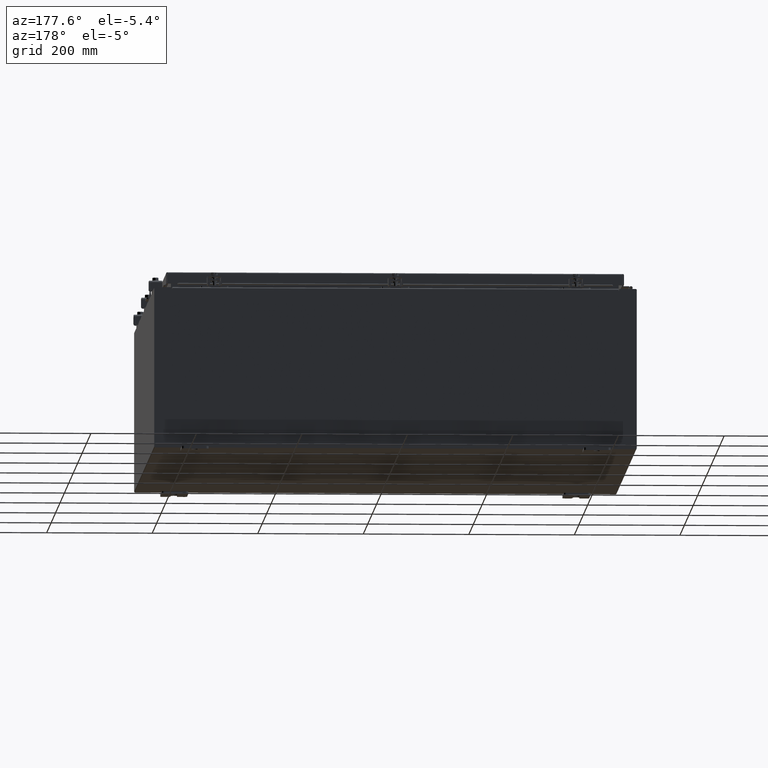
[diagram: clean part render]
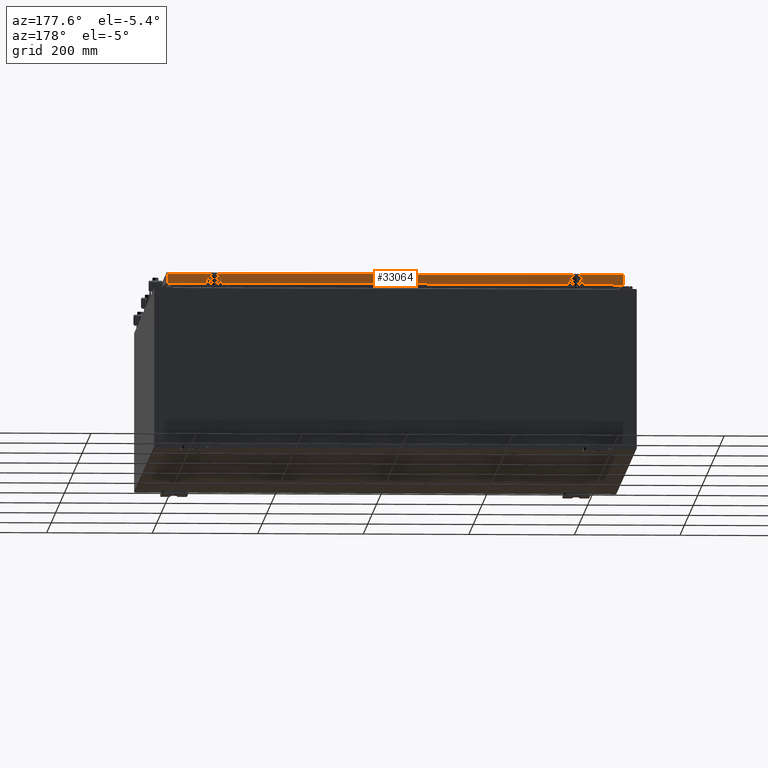
[diagram: same view with one face highlighted and labeled with its STEP entity id]
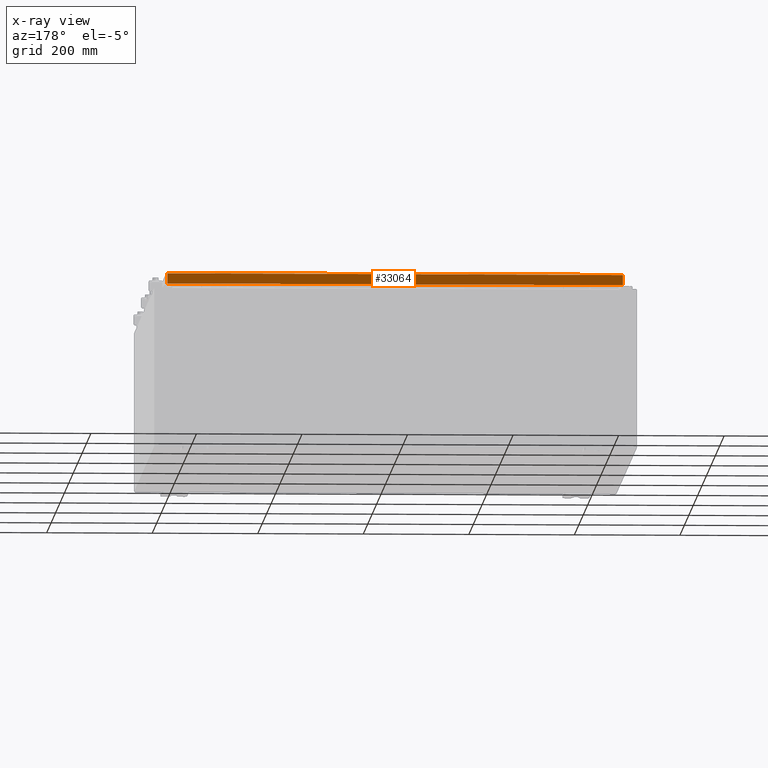
[diagram: x-ray of the same camera — body ghosted, the highlighted face saturated]
A machine part, auxiliary view. The second image highlights one B-rep face of the part: STEP entity #33064.
The next image is the same camera in x-ray: the body ghosted, the highlighted face saturated — about 0% of this face is hidden behind the body in this view.
In plain terms, the highlighted planar face has unit normal (0, -1, -0).
Its self-contained STEP definition (entity closure, byte-faithful):
#399 = CARTESIAN_POINT ( 'NONE',  ( -16.23915786437625600, 17.09399999999999800, -0.8500000000000068600 ) ) ;
#1565 = LINE ( 'NONE', #39183, #8645 ) ;
#2256 = VERTEX_POINT ( 'NONE', #18196 ) ;
#2471 = CARTESIAN_POINT ( 'NONE',  ( -17.07799999999999600, 17.09400000000000800, -0.8500000000000038600 ) ) ;
#2748 = DIRECTION ( 'NONE',  ( 1.000000000000000000, -0.0000000000000000000, -0.0000000000000000000 ) ) ;
#3636 = LINE ( 'NONE', #28234, #30293 ) ;
#6170 = EDGE_CURVE ( 'NONE', #43819, #7211, #1565, .T. ) ;
#7052 = EDGE_CURVE ( 'NONE', #43819, #18267, #3636, .T. ) ;
#7211 = VERTEX_POINT ( 'NONE', #25249 ) ;
#8023 = EDGE_CURVE ( 'NONE', #43436, #2256, #36178, .T. ) ;
#8645 = VECTOR ( 'NONE', #31936, 39.37007874015748100 ) ;
#9272 = EDGE_CURVE ( 'NONE', #16974, #43436, #32267, .T. ) ;
#11768 = CARTESIAN_POINT ( 'NONE',  ( -5.973675908357160900E-030, 17.09400000000000500, 4.844676449176205500E-014 ) ) ;
#15231 = DIRECTION ( 'NONE',  ( 0.0000000000000000000, 2.818880942772344800E-015, -1.000000000000000000 ) ) ;
#16491 = DIRECTION ( 'NONE',  ( 1.000000000000000000, 4.379057701015054300E-047, 1.239713195391617600E-016 ) ) ;
#16974 = VERTEX_POINT ( 'NONE', #38622 ) ;
#17953 = DIRECTION ( 'NONE',  ( -1.000000000000000000, -1.690937371448148100E-031, -6.398519718150284000E-017 ) ) ;
#18196 = CARTESIAN_POINT ( 'NONE',  ( 16.23915786437626400, 17.09399999999999800, -0.8500000000000068600 ) ) ;
#18267 = VERTEX_POINT ( 'NONE', #34026 ) ;
#21360 = CARTESIAN_POINT ( 'NONE',  ( -16.23915786437626000, 17.09399999999999800, -0.8500000000000068600 ) ) ;
#22097 = PLANE ( 'NONE',  #24243 ) ;
#23049 = VECTOR ( 'NONE', #26275, 39.37007874015748100 ) ;
#23675 = ORIENTED_EDGE ( 'NONE', *, *, #7052, .F. ) ;
#24243 = AXIS2_PLACEMENT_3D ( 'NONE', #11768, #36019, #15231 ) ;
#24640 = LINE ( 'NONE', #2471, #32782 ) ;
#25249 = CARTESIAN_POINT ( 'NONE',  ( 16.98915786437627100, 17.09400000000000800, -0.8499999999999996400 ) ) ;
#26275 = DIRECTION ( 'NONE',  ( 1.000000000000000000, 4.379057701015054300E-047, 1.239713195391617600E-016 ) ) ;
#26306 = ORIENTED_EDGE ( 'NONE', *, *, #9272, .F. ) ;
#27104 = ORIENTED_EDGE ( 'NONE', *, *, #35640, .F. ) ;
#27485 = ORIENTED_EDGE ( 'NONE', *, *, #8023, .F. ) ;
#28234 = CARTESIAN_POINT ( 'NONE',  ( -17.07799999999999600, 17.09400000000000500, -0.08770000000000007000 ) ) ;
#30293 = VECTOR ( 'NONE', #17953, 39.37007874015748100 ) ;
#30505 = EDGE_CURVE ( 'NONE', #2256, #7211, #24640, .T. ) ;
#31936 = DIRECTION ( 'NONE',  ( 0.0000000000000000000, 2.818880942772344800E-015, -1.000000000000000000 ) ) ;
#32267 = LINE ( 'NONE', #43566, #23049 ) ;
#32419 = CARTESIAN_POINT ( 'NONE',  ( -16.98915786437626400, 17.09400000000000500, -0.07469999999999978000 ) ) ;
#32782 = VECTOR ( 'NONE', #16491, 39.37007874015748100 ) ;
#33064 = ADVANCED_FACE ( 'NONE', ( #35928 ), #22097, .F. ) ;
#34026 = CARTESIAN_POINT ( 'NONE',  ( -16.98915786437626700, 17.09400000000000500, -0.08769999999999897300 ) ) ;
#35640 = EDGE_CURVE ( 'NONE', #18267, #16974, #39491, .T. ) ;
#35904 = DIRECTION ( 'NONE',  ( -0.0000000000000000000, 2.818880942772344800E-015, -1.000000000000000000 ) ) ;
#35928 = FACE_OUTER_BOUND ( 'NONE', #37084, .T. ) ;
#36019 = DIRECTION ( 'NONE',  ( 3.494603900992838600E-031, -1.000000000000000000, -2.818880942772344800E-015 ) ) ;
#36178 = LINE ( 'NONE', #399, #37257 ) ;
#37084 = EDGE_LOOP ( 'NONE', ( #23675, #44302, #41446, #27485, #26306, #27104 ) ) ;
#37257 = VECTOR ( 'NONE', #2748, 39.37007874015748100 ) ;
#38622 = CARTESIAN_POINT ( 'NONE',  ( -16.98915786437626400, 17.09400000000000800, -0.8500000000000038600 ) ) ;
#39183 = CARTESIAN_POINT ( 'NONE',  ( 16.98915786437627100, 17.09400000000000500, 4.844676449176205500E-014 ) ) ;
#39491 = LINE ( 'NONE', #32419, #40587 ) ;
#40578 = CARTESIAN_POINT ( 'NONE',  ( 16.98915786437627100, 17.09400000000000500, -0.08769999999999787700 ) ) ;
#40587 = VECTOR ( 'NONE', #35904, 39.37007874015748100 ) ;
#41446 = ORIENTED_EDGE ( 'NONE', *, *, #30505, .F. ) ;
#43436 = VERTEX_POINT ( 'NONE', #21360 ) ;
#43566 = CARTESIAN_POINT ( 'NONE',  ( -17.07799999999999600, 17.09400000000000800, -0.8500000000000038600 ) ) ;
#43819 = VERTEX_POINT ( 'NONE', #40578 ) ;
#44302 = ORIENTED_EDGE ( 'NONE', *, *, #6170, .T. ) ;